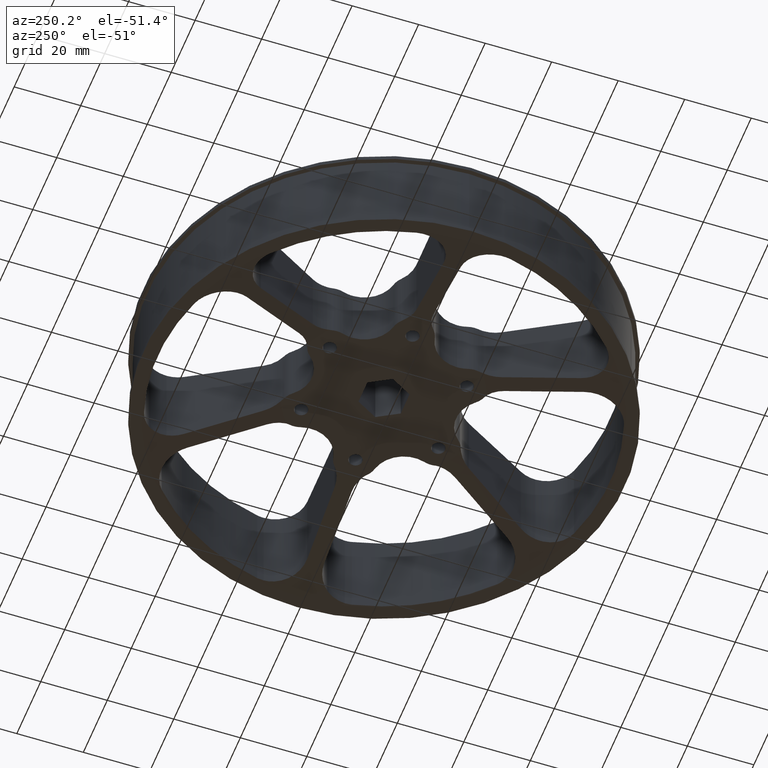
[diagram: clean part render]
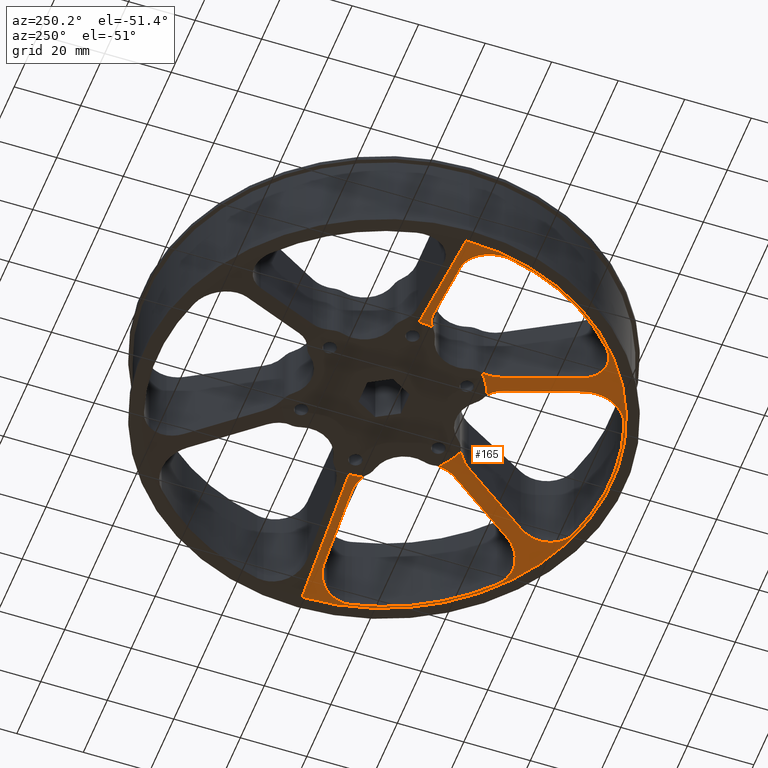
[diagram: same view with one face highlighted and labeled with its STEP entity id]
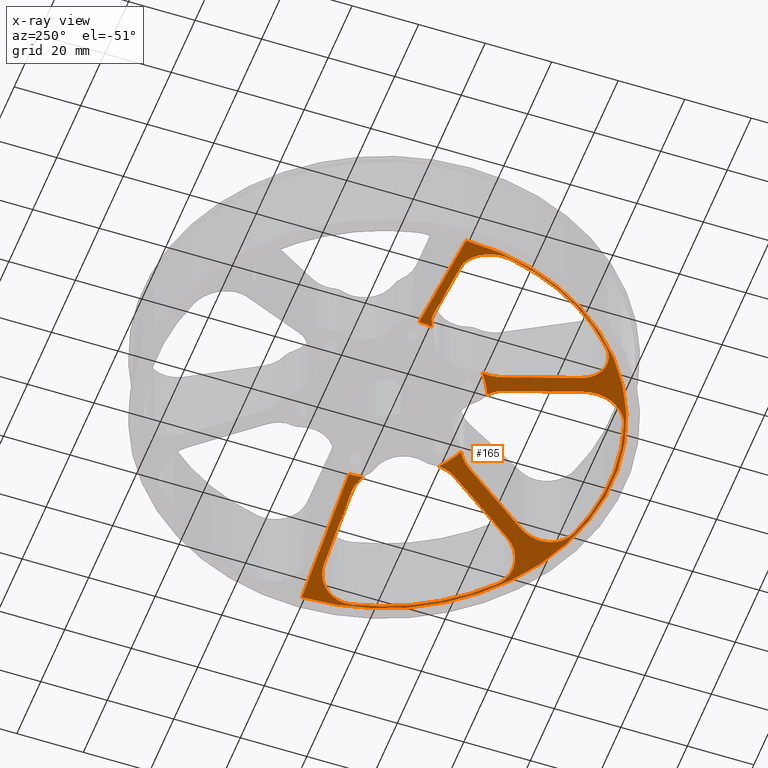
[diagram: x-ray of the same camera — body ghosted, the highlighted face saturated]
A machine part, auxiliary view. The second image highlights one B-rep face of the part: STEP entity #165.
The next image is the same camera in x-ray: the body ghosted, the highlighted face saturated — about 0% of this face is hidden behind the body in this view.
In plain terms, the highlighted conical surface has half-angle 76.483 deg.
Its self-contained STEP definition (entity closure, byte-faithful):
#26 = CARTESIAN_POINT ( 'NONE',  ( 1.155701270126330060, -0.1503132278564432711, 0.3689003627380584294 ) ) ;
#36 = CARTESIAN_POINT ( 'NONE',  ( -1.087427513776300980, -2.179539492029768155, 0.06352635243648625807 ) ) ;
#78 = VERTEX_POINT ( 'NONE', #2067 ) ;
#85 = VERTEX_POINT ( 'NONE', #1093 ) ;
#89 = ORIENTED_EDGE ( 'NONE', *, *, #990, .T. ) ;
#109 = EDGE_CURVE ( 'NONE', #4245, #4113, #3726, .T. ) ;
#118 = EDGE_CURVE ( 'NONE', #4113, #2414, #2725, .T. ) ;
#120 = CARTESIAN_POINT ( 'NONE',  ( 2.544980817644129090, -0.2463888546859934192, 0.03442088030356682538 ) ) ;
#123 = CARTESIAN_POINT ( 'NONE',  ( -0.5325596656303284160, -1.142900801905406993, 0.3459443311389593934 ) ) ;
#143 = CARTESIAN_POINT ( 'NONE',  ( 7.359656244876505384E-19, 0.0000000000000000000, 0.006009615384615852457 ) ) ;
#159 = CARTESIAN_POINT ( 'NONE',  ( 1.345544115262073515, -0.1000000000000096922, 0.3246983252277149679 ) ) ;
#165 = ADVANCED_FACE ( 'NONE', ( #3126 ), #3615, .F. ) ;
#197 = DIRECTION ( 'NONE',  ( -1.000000000000000000, 0.0000000000000000000, 1.224704050897968476E-16 ) ) ;
#202 = CARTESIAN_POINT ( 'NONE',  ( 1.368279890436745472, -2.044821805714155616, 0.05761208094328033880 ) ) ;
#203 = CARTESIAN_POINT ( 'NONE',  ( 0.7088819378625941248, -0.9074633893932486650, 0.3722302374804256075 ) ) ;
#219 = CARTESIAN_POINT ( 'NONE',  ( -1.327409411418778440, -0.09999999999998848699, 0.3290456396563286035 ) ) ;
#229 = VERTEX_POINT ( 'NONE', #746 ) ;
#241 = CARTESIAN_POINT ( 'NONE',  ( -1.078259601707718618, -2.263191920964511716, 0.04641567734534914752 ) ) ;
#249 = CARTESIAN_POINT ( 'NONE',  ( 0.7503072489403277423, -1.099570276451906636, 0.3290456382887024800 ) ) ;
#261 = CARTESIAN_POINT ( 'NONE',  ( 0.7593745980094686043, -1.115275385729621149, 0.3246983252277151344 ) ) ;
#265 = AXIS2_PLACEMENT_3D ( 'NONE', #2684, #2706, #1750 ) ;
#294 = CARTESIAN_POINT ( 'NONE',  ( -2.393441598232610712, -0.1302376864193036110, 0.07284213423055649339 ) ) ;
#304 = VERTEX_POINT ( 'NONE', #1744 ) ;
#306 = CARTESIAN_POINT ( 'NONE',  ( -2.616647412557147501, -0.4030687427845288107, 0.01262575695546981104 ) ) ;
#307 = CARTESIAN_POINT ( 'NONE',  ( -0.7427177851048467616, -1.086424939486604346, 0.3326843837485241040 ) ) ;
#313 = CARTESIAN_POINT ( 'NONE',  ( 1.770420596496624421, -2.004402361685679868, 0.006180855580384101745 ) ) ;
#321 = CARTESIAN_POINT ( 'NONE',  ( 1.080973602012593071, -2.117304496824770510, 0.07757733744274782073 ) ) ;
#328 = CARTESIAN_POINT ( 'NONE',  ( 1.792440584468726339, -1.985643913482326939, 0.006009615384615633014 ) ) ;
#338 = EDGE_CURVE ( 'NONE', #229, #85, #1046, .T. ) ;
#367 = CARTESIAN_POINT ( 'NONE',  ( -1.081989840471868858, -2.123981262425100880, 0.07603577902341968064 ) ) ;
#400 = EDGE_CURVE ( 'NONE', #2081, #2384, #3452, .T. ) ;
#414 = VERTEX_POINT ( 'NONE', #1173 ) ;
#425 = CARTESIAN_POINT ( 'NONE',  ( 1.051226338830098417, -2.022974489267507447, 0.1010089564023648329 ) ) ;
#436 = CIRCLE ( 'NONE', #1271, 1.151522212081429908 ) ;
#437 = CARTESIAN_POINT ( 'NONE',  ( 2.624242633941344494, -0.4800000000000162470, 0.007745225043631423674 ) ) ;
#440 = CARTESIAN_POINT ( 'NONE',  ( -1.448101248479610526, -2.073100424637317918, 0.04116182191688684544 ) ) ;
#451 = EDGE_CURVE ( 'NONE', #2081, #2304, #2750, .T. ) ;
#452 = CARTESIAN_POINT ( 'NONE',  ( 2.493447191203042923, -0.1920359558782119280, 0.04788948208505985904 ) ) ;
#475 = CARTESIAN_POINT ( 'NONE',  ( 1.944687247254166529, -0.1000000000000140776, 0.1809588940875915264 ) ) ;
#476 = CARTESIAN_POINT ( 'NONE',  ( -0.7088819378626094458, -0.9074633893932367856, 0.3722302374804257186 ) ) ;
#500 = ORIENTED_EDGE ( 'NONE', *, *, #3954, .T. ) ;
#510 = CARTESIAN_POINT ( 'NONE',  ( -1.171029754925200672, -0.1404775590272032415, 0.3655803360377242739 ) ) ;
#514 = CARTESIAN_POINT ( 'NONE',  ( -1.139999999999999902, 0.0000000000000000000, 0.3750000000000002776 ) ) ;
#522 = CARTESIAN_POINT ( 'NONE',  ( 1.420851896341116305, -2.065396167435627817, 0.04641567734534893241 ) ) ;
#533 = CARTESIAN_POINT ( 'NONE',  ( -1.086727684742459621, -2.207376047462685786, 0.05761208094328052615 ) ) ;
#603 = ORIENTED_EDGE ( 'NONE', *, *, #109, .T. ) ;
#605 = CARTESIAN_POINT ( 'NONE',  ( 4.558505688762634845E-17, 0.0000000000000000000, 0.3722302374804262737 ) ) ;
#606 = CARTESIAN_POINT ( 'NONE',  ( 1.792440584468726339, -1.985643913482326939, 0.006009615384615633014 ) ) ;
#611 = CARTESIAN_POINT ( 'NONE',  ( -2.272313863783645083, -0.09999999999998306077, 0.1022805633555093907 ) ) ;
#624 = CARTESIAN_POINT ( 'NONE',  ( 2.615838364179998266, -0.5594771241830254205, 0.006009615384615532400 ) ) ;
#628 = CARTESIAN_POINT ( 'NONE',  ( -2.455007575179199542, -0.1625542417485378588, 0.05761208094328065105 ) ) ;
#644 = CARTESIAN_POINT ( 'NONE',  ( -2.622954048119797488, -0.4456241243295342436, 0.009494228455443063860 ) ) ;
#647 = CARTESIAN_POINT ( 'NONE',  ( 0.5680347330550238327, -1.183865018115151324, 0.3333929926105487218 ) ) ;
#657 = CARTESIAN_POINT ( 'NONE',  ( 1.071201648468280476, -2.290526625636861713, 0.04119613056991571626 ) ) ;
#667 = CARTESIAN_POINT ( 'NONE',  ( 1.086429123154122989, -2.203223318394033736, 0.05853109271543806974 ) ) ;
#672 = CARTESIAN_POINT ( 'NONE',  ( -1.616597043591029292, -2.075584673143929582, 0.01662676016590336481 ) ) ;
#690 = CARTESIAN_POINT ( 'NONE',  ( 1.002855018974080137, -2.422178328650328005, 0.01886511939905931301 ) ) ;
#708 = CARTESIAN_POINT ( 'NONE',  ( -0.9137735017973108720, -2.502335133938920819, 0.008673133990504821797 ) ) ;
#718 = CARTESIAN_POINT ( 'NONE',  ( 1.140327317150177322, -0.1601780717763461037, 0.3722302374804254965 ) ) ;
#732 = EDGE_LOOP ( 'NONE', ( #2688, #2520, #1845, #1951, #995, #89, #2469, #1680, #500, #2014, #3007, #1647, #4033, #4144, #1701, #1291, #964, #1098, #4105, #735, #2897, #3777, #1903, #2293, #4167, #603, #2380, #1288, #2848, #2722, #2476 ) ) ;
#733 = CARTESIAN_POINT ( 'NONE',  ( 2.549591630525159028E-32, 0.0000000000000000000, 2.081899558550500773E-16 ) ) ;
#734 = DIRECTION ( 'NONE',  ( 1.224646799147353454E-16, 0.0000000000000000000, 1.000000000000000000 ) ) ;
#735 = ORIENTED_EDGE ( 'NONE', *, *, #2741, .T. ) ;
#738 = B_SPLINE_CURVE_WITH_KNOTS ( 'NONE', 3,
 ( #2858, #510, #3877, #1865, #4205, #2204, #219, #2538 ),
 .UNSPECIFIED., .F., .F.,
 ( 4, 2, 2, 4 ),
 ( 0.0003973831653408863951, 0.003199192370927435910, 0.004600096973720715736, 0.006001001576513995128 ),
 .UNSPECIFIED. ) ;
#746 = CARTESIAN_POINT ( 'NONE',  ( 2.624242633941344494, -0.4800000000000162470, 0.007745225043631423674 ) ) ;
#747 = VERTEX_POINT ( 'NONE', #1379 ) ;
#753 = DIRECTION ( 'NONE',  ( 0.9723023748042558534, 1.190726991107402124E-16, -0.2337265324048691528 ) ) ;
#762 = CARTESIAN_POINT ( 'NONE',  ( 1.035518776592210699, -1.993571133249317562, 0.1090217662803018989 ) ) ;
#768 = CARTESIAN_POINT ( 'NONE',  ( 2.623620770787648659, -0.4548412670131410929, 0.008959771050187408103 ) ) ;
#790 = CARTESIAN_POINT ( 'NONE',  ( 2.443416960375818014, -0.1561463612257563693, 0.06048231693274202375 ) ) ;
#807 = CARTESIAN_POINT ( 'NONE',  ( 0.4476755617751335126, -1.076023273333021946, 0.3689003626230651922 ) ) ;
#822 = CARTESIAN_POINT ( 'NONE',  ( 2.615838364179998266, -0.5594771241830254205, 0.006009615384615532400 ) ) ;
#838 = CARTESIAN_POINT ( 'NONE',  ( 1.139999999999999902, 1.396097351027982523E-16, 0.3750000000000000555 ) ) ;
#849 = DIRECTION ( 'NONE',  ( -1.000000000000000000, 0.0000000000000000000, 1.224704050897968476E-16 ) ) ;
#872 = AXIS2_PLACEMENT_3D ( 'NONE', #4180, #2172, #197 ) ;
#873 = CARTESIAN_POINT ( 'NONE',  ( 1.461567144382815098, -2.076107381903147253, 0.03871231928918920928 ) ) ;
#883 = CARTESIAN_POINT ( 'NONE',  ( -1.345544115262074847, -0.09999999999998840372, 0.3246983252277153009 ) ) ;
#899 = CARTESIAN_POINT ( 'NONE',  ( -1.671089567941404175, -2.059723331815689118, 0.01146111758689660580 ) ) ;
#942 = DIRECTION ( 'NONE',  ( -1.000000000000000000, 1.065814103640150279E-14, 1.186189881967765580E-16 ) ) ;
#958 = CARTESIAN_POINT ( 'NONE',  ( 1.697398836268464883, -2.048732776466211991, 0.009494228455442567730 ) ) ;
#962 = CARTESIAN_POINT ( 'NONE',  ( -1.035518776592254886, -1.993571133249296246, 0.1090217662803018989 ) ) ;
#964 = ORIENTED_EDGE ( 'NONE', *, *, #3487, .T. ) ;
#967 = CARTESIAN_POINT ( 'NONE',  ( -2.499111498048828039, -0.1977957535288926705, 0.04641567734534939038 ) ) ;
#980 = CARTESIAN_POINT ( 'NONE',  ( -2.624419041817796838, -0.4882509626545472048, 0.007352468114572310864 ) ) ;
#982 = B_SPLINE_CURVE_WITH_KNOTS ( 'NONE', 3,
 ( #3692, #1424, #2077, #3087 ),
 .UNSPECIFIED., .F., .F.,
 ( 4, 4 ),
 ( 0.01120379814011732665, 0.03467888712090326508 ),
 .UNSPECIFIED. ) ;
#990 = EDGE_CURVE ( 'NONE', #2384, #2163, #738, .T. ) ;
#995 = ORIENTED_EDGE ( 'NONE', *, *, #400, .T. ) ;
#1001 = CARTESIAN_POINT ( 'NONE',  ( 1.086429123154167176, -2.183571133249309071, 0.06276058290869274137 ) ) ;
#1005 = CARTESIAN_POINT ( 'NONE',  ( -0.5861695172526094622, -1.215275385729605251, 0.3246983252277151899 ) ) ;
#1013 = CARTESIAN_POINT ( 'NONE',  ( 1.345544115262073515, -0.1000000000000096922, 0.3246983252277149679 ) ) ;
#1025 = DIRECTION ( 'NONE',  ( -1.000000000000000000, -1.776356839400250465E-15, 1.224704050897968476E-16 ) ) ;
#1026 = CARTESIAN_POINT ( 'NONE',  ( 2.624242633941344494, -0.5065984331441538702, 0.006594811540705704939 ) ) ;
#1033 = CARTESIAN_POINT ( 'NONE',  ( -0.8767518046030798873, -2.523564763349656292, 0.006852893376929147275 ) ) ;
#1036 = CARTESIAN_POINT ( 'NONE',  ( -0.7172348243003056067, -1.008113783495358629, 0.3516323745419662750 ) ) ;
#1037 = VECTOR ( 'NONE', #1181, 39.37007874015748854 ) ;
#1038 = EDGE_CURVE ( 'NONE', #2440, #2756, #1575, .T. ) ;
#1046 = B_SPLINE_CURVE_WITH_KNOTS ( 'NONE', 3,
 ( #437, #2761, #768, #3086, #1100, #3432, #1422, #3780, #1760, #4107, #2092, #120, #2430, #452, #2777, #790, #3098, #1117, #3447, #1435, #3793, #1778, #4121, #2104 ),
 .UNSPECIFIED., .F., .F.,
 ( 4, 2, 2, 2, 2, 2, 2, 2, 2, 2, 2, 4 ),
 ( 0.002026578632197727995, 0.002984125107026652096, 0.003941671581855575764, 0.005856764531513423966, 0.006814311006342336358, 0.007771857481171248749, 0.009686950430829071798, 0.01160204338048689485, 0.01255958985531581591, 0.01351713633014473524, 0.01543222927980259472, 0.01734732222946045246 ),
 .UNSPECIFIED. ) ;
#1049 = CARTESIAN_POINT ( 'NONE',  ( 0.7593745980094686043, -1.115275385729621149, 0.3246983252277151344 ) ) ;
#1054 = LINE ( 'NONE', #838, #1932 ) ;
#1064 = DIRECTION ( 'NONE',  ( -1.000000000000000000, 0.0000000000000000000, 1.224646799147353454E-16 ) ) ;
#1089 = CARTESIAN_POINT ( 'NONE',  ( -0.4314453792875886373, -1.067641461169571926, 0.3722302374804256631 ) ) ;
#1090 = CARTESIAN_POINT ( 'NONE',  ( -1.208723857349127018, -1.893571133249301486, 0.1090217662803022736 ) ) ;
#1093 = CARTESIAN_POINT ( 'NONE',  ( 2.244242633941346821, -0.1000000000000162842, 0.1090217662803017601 ) ) ;
#1096 = CARTESIAN_POINT ( 'NONE',  ( -0.7593745980094864789, -1.115275385729609159, 0.3246983252277152454 ) ) ;
#1098 = ORIENTED_EDGE ( 'NONE', *, *, #2990, .T. ) ;
#1100 = CARTESIAN_POINT ( 'NONE',  ( 2.619200423749525886, -0.4170335226248079175, 0.01149837214395146162 ) ) ;
#1107 = AXIS2_PLACEMENT_3D ( 'NONE', #3257, #1260, #3597 ) ;
#1117 = CARTESIAN_POINT ( 'NONE',  ( 2.410903532782334935, -0.1382725979530675664, 0.06854326818634690066 ) ) ;
#1125 = CARTESIAN_POINT ( 'NONE',  ( 4.558505688762623135E-17, 0.0000000000000000000, 0.3722302374804257186 ) ) ;
#1149 = B_SPLINE_CURVE_WITH_KNOTS ( 'NONE', 3,
 ( #1089, #2310, #1787, #123, #3643, #4137, #2281, #4288 ),
 .UNSPECIFIED., .F., .F.,
 ( 4, 2, 2, 4 ),
 ( 0.0003973831653409074286, 0.003199192643236138840, 0.004600097382183757772, 0.006001002121131377570 ),
 .UNSPECIFIED. ) ;
#1173 = CARTESIAN_POINT ( 'NONE',  ( -0.7084642514475723019, -0.9252753857296075468, 0.3689046500688198393 ) ) ;
#1176 = VERTEX_POINT ( 'NONE', #1005 ) ;
#1177 = B_SPLINE_CURVE_WITH_KNOTS ( 'NONE', 3,
 ( #822, #2354, #1026, #3694 ),
 .UNSPECIFIED., .F., .F.,
 ( 4, 4 ),
 ( 0.0000000000000000000, 0.002026578632197727995 ),
 .UNSPECIFIED. ) ;
#1178 = CARTESIAN_POINT ( 'NONE',  ( 1.239199103310891781, -1.940210342415246147, 0.09563110297430577056 ) ) ;
#1181 = DIRECTION ( 'NONE',  ( -0.9723023748042558534, 0.0000000000000000000, -0.2337265324048689308 ) ) ;
#1188 = CARTESIAN_POINT ( 'NONE',  ( 1.503236050090756670, -2.082260233324131793, 0.03169419744200854122 ) ) ;
#1204 = B_SPLINE_CURVE_WITH_KNOTS ( 'NONE', 3,
 ( #3678, #1328, #2024, #1779 ),
 .UNSPECIFIED., .F., .F.,
 ( 4, 4 ),
 ( 0.01120379814011732318, 0.03467888712090325815 ),
 .UNSPECIFIED. ) ;
#1210 = CARTESIAN_POINT ( 'NONE',  ( 0.7088819378625941248, -0.9074633893932486650, 0.3722302374804256075 ) ) ;
#1216 = CARTESIAN_POINT ( 'NONE',  ( -0.9901504688013065270, -2.437966785560228278, 0.01653074657228797983 ) ) ;
#1223 = CARTESIAN_POINT ( 'NONE',  ( -1.710520045632440977, -2.042356043043110692, 0.008653585715785519494 ) ) ;
#1229 = CARTESIAN_POINT ( 'NONE',  ( 0.7071720120755788930, -0.9439027403810058559, 0.3655803353913515963 ) ) ;
#1232 = CARTESIAN_POINT ( 'NONE',  ( -0.9255552118513388216, -2.494356900795737797, 0.009494228455442767223 ) ) ;
#1260 = DIRECTION ( 'NONE',  ( 1.224646799147353454E-16, 0.0000000000000000000, 1.000000000000000000 ) ) ;
#1270 = CARTESIAN_POINT ( 'NONE',  ( 0.4314453792875629912, -1.067641461169582140, 0.3722302374804256075 ) ) ;
#1271 = AXIS2_PLACEMENT_3D ( 'NONE', #605, #2935, #942 ) ;
#1280 = CARTESIAN_POINT ( 'NONE',  ( -1.344578831383624218, -2.031069387294141659, 0.06351105622040975618 ) ) ;
#1281 = CARTESIAN_POINT ( 'NONE',  ( -2.528745305903933982, -0.2277005854206285429, 0.03871231928918964643 ) ) ;
#1288 = ORIENTED_EDGE ( 'NONE', *, *, #3488, .T. ) ;
#1291 = ORIENTED_EDGE ( 'NONE', *, *, #4164, .T. ) ;
#1297 = CARTESIAN_POINT ( 'NONE',  ( -2.621073662873634635, -0.5310280311064423664, 0.006180855580384496395 ) ) ;
#1298 = DIRECTION ( 'NONE',  ( -1.000000000000000000, 8.881784197001252323E-16, 1.186189881967765580E-16 ) ) ;
#1300 = B_SPLINE_CURVE_WITH_KNOTS ( 'NONE', 3,
 ( #2644, #3992, #1311, #321, #4318, #3073, #3655, #425, #2749, #762 ),
 .UNSPECIFIED., .F., .F.,
 ( 4, 2, 2, 2, 4 ),
 ( 0.01219422600215053568, 0.01348250005897801661, 0.01477077411580549754, 0.01605904817263297674, 0.01734732222946045940 ),
 .UNSPECIFIED. ) ;
#1311 = CARTESIAN_POINT ( 'NONE',  ( 1.085321576909514807, -2.150174393384407079, 0.07005862468894225037 ) ) ;
#1318 = CARTESIAN_POINT ( 'NONE',  ( 1.781717568682111175, -1.995323578881204707, 0.006009615384615614800 ) ) ;
#1328 = CARTESIAN_POINT ( 'NONE',  ( -1.058946164977367266, -1.634148560220994861, 0.1809588936208283705 ) ) ;
#1329 = CARTESIAN_POINT ( 'NONE',  ( 1.309274531260010477, -0.1000000000000096506, 0.3333929963519006168 ) ) ;
#1356 = CARTESIAN_POINT ( 'NONE',  ( -0.8371421237401572846, -2.540674466288353806, 0.006009615384615894958 ) ) ;
#1379 = CARTESIAN_POINT ( 'NONE',  ( -0.4314453792875886373, -1.067641461169571926, 0.3722302374804256631 ) ) ;
#1393 = CARTESIAN_POINT ( 'NONE',  ( -1.140327317150180209, -0.1601780717763267581, 0.3722302374804257741 ) ) ;
#1422 = CARTESIAN_POINT ( 'NONE',  ( 2.604371306561161781, -0.3561527404227515792, 0.01718246934554511218 ) ) ;
#1424 = CARTESIAN_POINT ( 'NONE',  ( 0.8857410842204547219, -1.734148560221009161, 0.1809588936208279819 ) ) ;
#1426 = CARTESIAN_POINT ( 'NONE',  ( 1.208723857349099262, -1.893571133249320360, 0.1090217662803017046 ) ) ;
#1435 = CARTESIAN_POINT ( 'NONE',  ( 2.365412310584178446, -0.1189948068126838038, 0.07971402238829983222 ) ) ;
#1439 = CARTESIAN_POINT ( 'NONE',  ( -1.630392436859937400, -2.072394202112499695, 0.01518726926310766216 ) ) ;
#1442 = CIRCLE ( 'NONE', #3743, 2.674999999999999822 ) ;
#1466 = CARTESIAN_POINT ( 'NONE',  ( -1.049554391513402463, -2.017881531408196150, 0.1022805633555091548 ) ) ;
#1471 = CARTESIAN_POINT ( 'NONE',  ( 1.035518776592210699, -1.993571133249317562, 0.1090217662803018989 ) ) ;
#1479 = CARTESIAN_POINT ( 'NONE',  ( -2.244242633941349041, -0.09999999999998318567, 0.1090217662803020515 ) ) ;
#1487 = CARTESIAN_POINT ( 'NONE',  ( -1.420869961447045027, -2.065405893146414318, 0.04641134710570003763 ) ) ;
#1490 = DIRECTION ( 'NONE',  ( 1.224646799147353454E-16, 0.0000000000000000000, 1.000000000000000000 ) ) ;
#1491 = CARTESIAN_POINT ( 'NONE',  ( -1.944687223175657564, -0.09999999999998493427, 0.1809588998699580287 ) ) ;
#1510 = CARTESIAN_POINT ( 'NONE',  ( 1.041194022041222578, -2.363655673215649511, 0.02817128197472346107 ) ) ;
#1516 = CARTESIAN_POINT ( 'NONE',  ( 1.545913189000520216, -2.083749486676334861, 0.02534717587149130924 ) ) ;
#1526 = VERTEX_POINT ( 'NONE', #2854 ) ;
#1534 = CARTESIAN_POINT ( 'NONE',  ( 0.4314453792875629912, -1.067641461169582140, 0.3722302374804256075 ) ) ;
#1542 = CARTESIAN_POINT ( 'NONE',  ( -1.008225335937297684, -2.416216328248664169, 0.01970530602920987293 ) ) ;
#1561 = CARTESIAN_POINT ( 'NONE',  ( -0.9592559355557284118, -2.467617503413571001, 0.01262575695546950226 ) ) ;
#1563 = CIRCLE ( 'NONE', #872, 2.674999999999999822 ) ;
#1566 = CARTESIAN_POINT ( 'NONE',  ( -1.588663312432264441, -2.080420196640258457, 0.01980712311060669334 ) ) ;
#1569 = CARTESIAN_POINT ( 'NONE',  ( 0.7593745980094686043, -1.115275385729621149, 0.3246983252277151344 ) ) ;
#1575 = B_SPLINE_CURVE_WITH_KNOTS ( 'NONE', 3,
 ( #1598, #611, #3953, #1935, #4279, #2280, #294, #2617, #628, #2956, #967, #3282, #1281, #3626, #1614, #3961, #1950, #4294, #2296, #306, #2634, #644, #2968, #980, #3300, #1297, #3641, #1628 ),
 .UNSPECIFIED., .F., .F.,
 ( 4, 2, 2, 2, 2, 2, 2, 2, 2, 2, 2, 2, 2, 4 ),
 ( 0.0000000000000000000, 0.002168853664803587714, 0.003253280497205391329, 0.004337707329607195378, 0.006506560994410786128, 0.007590987826812581503, 0.008675414659214378613, 0.009759841491616173120, 0.01084426832401796936, 0.01301312198882156011, 0.01409754882122335462, 0.01518197565362514739, 0.01626640248602694364, 0.01735082931842873641 ),
 .UNSPECIFIED. ) ;
#1598 = CARTESIAN_POINT ( 'NONE',  ( -2.244242633941349041, -0.09999999999998318567, 0.1090217662803020515 ) ) ;
#1609 = CARTESIAN_POINT ( 'NONE',  ( 0.9465993998050531433, -2.478742803002122574, 0.01123335039722226161 ) ) ;
#1614 = CARTESIAN_POINT ( 'NONE',  ( -2.554908284394188378, -0.2607104906011126211, 0.03169419744200908245 ) ) ;
#1625 = CARTESIAN_POINT ( 'NONE',  ( 0.7424383178592043331, -1.083358003117996349, 0.3333315966553895282 ) ) ;
#1628 = CARTESIAN_POINT ( 'NONE',  ( -2.615838364180006259, -0.5594771241829868957, 0.006009615384616172513 ) ) ;
#1634 = CARTESIAN_POINT ( 'NONE',  ( 0.5459023428339055961, -1.155705115592978727, 0.3418077866013434218 ) ) ;
#1647 = ORIENTED_EDGE ( 'NONE', *, *, #4215, .T. ) ;
#1649 = CARTESIAN_POINT ( 'NONE',  ( 7.359656244876505384E-19, 0.0000000000000000000, 0.006009615384615852457 ) ) ;
#1660 = EDGE_CURVE ( 'NONE', #3097, #1526, #436, .T. ) ;
#1668 = CARTESIAN_POINT ( 'NONE',  ( 1.221825952857054531, -0.1202504314963569604, 0.3539155783736997463 ) ) ;
#1677 = CARTESIAN_POINT ( 'NONE',  ( -1.060671893561466295, -2.043283075021750772, 0.09563110297430593709 ) ) ;
#1680 = ORIENTED_EDGE ( 'NONE', *, *, #1038, .T. ) ;
#1688 = CARTESIAN_POINT ( 'NONE',  ( 1.710199043874790714, -2.042518632830992775, 0.008673133990504618834 ) ) ;
#1689 = CARTESIAN_POINT ( 'NONE',  ( -0.8233977797112879138, -2.545121037665305064, 0.006009615384615953071 ) ) ;
#1691 = CARTESIAN_POINT ( 'NONE',  ( 1.208723857349099262, -1.893571133249320360, 0.1090217662803017046 ) ) ;
#1697 = CARTESIAN_POINT ( 'NONE',  ( -1.035518776592254886, -1.993571133249296246, 0.1090217662803018989 ) ) ;
#1701 = ORIENTED_EDGE ( 'NONE', *, *, #4145, .T. ) ;
#1706 = CARTESIAN_POINT ( 'NONE',  ( 1.073890803904357760, -2.280886748339614023, 0.04301900775269992122 ) ) ;
#1730 = VERTEX_POINT ( 'NONE', #2641 ) ;
#1744 = CARTESIAN_POINT ( 'NONE',  ( -1.208723857349127018, -1.893571133249301486, 0.1090217662803022736 ) ) ;
#1747 = CARTESIAN_POINT ( 'NONE',  ( -1.461949482608109641, -2.076187011877027810, 0.03864379365982685555 ) ) ;
#1750 = DIRECTION ( 'NONE',  ( -1.000000000000000000, 0.0000000000000000000, 1.198178944589589118E-16 ) ) ;
#1760 = CARTESIAN_POINT ( 'NONE',  ( 2.584310803097348508, -0.3099677234682259863, 0.02336219458336322510 ) ) ;
#1778 = CARTESIAN_POINT ( 'NONE',  ( 2.293814231975073614, -0.1024486495129388330, 0.09709181715662584811 ) ) ;
#1779 = CARTESIAN_POINT ( 'NONE',  ( -0.7593745980094864789, -1.115275385729609159, 0.3246983252277152454 ) ) ;
#1784 = B_SPLINE_CURVE_WITH_KNOTS ( 'NONE', 3,
 ( #1049, #3034, #4043, #1691 ),
 .UNSPECIFIED., .F., .F.,
 ( 4, 4 ),
 ( 2.374831638876753537E-07, 0.02347532646394985198 ),
 .UNSPECIFIED. ) ;
#1787 = CARTESIAN_POINT ( 'NONE',  ( -0.4931610981416661432, -1.105302345974094269, 0.3581113411067550212 ) ) ;
#1788 = VERTEX_POINT ( 'NONE', #2669 ) ;
#1795 = CARTESIAN_POINT ( 'NONE',  ( -0.7095599325864463403, -0.9585855485907077700, 0.3623554546846615709 ) ) ;
#1802 = EDGE_CURVE ( 'NONE', #1730, #3097, #2003, .T. ) ;
#1822 = AXIS2_PLACEMENT_3D ( 'NONE', #3503, #1490, #3848 ) ;
#1835 = CARTESIAN_POINT ( 'NONE',  ( -1.332597009147855838, -2.023701662793262912, 0.06657530022539949466 ) ) ;
#1845 = ORIENTED_EDGE ( 'NONE', *, *, #1887, .T. ) ;
#1848 = CARTESIAN_POINT ( 'NONE',  ( 1.298426810186348979, -1.999021319697857235, 0.07603577902341952799 ) ) ;
#1854 = CARTESIAN_POINT ( 'NONE',  ( 1.054576309254389832, -2.337146694643605471, 0.03268973049403473691 ) ) ;
#1858 = CARTESIAN_POINT ( 'NONE',  ( 1.616265935477197990, -2.076478852331112623, 0.01653074657228777514 ) ) ;
#1859 = CARTESIAN_POINT ( 'NONE',  ( -1.771010582761333385, -2.004988774121615247, 0.006009615384616071899 ) ) ;
#1865 = CARTESIAN_POINT ( 'NONE',  ( -1.256060949214086619, -0.1102402044935203301, 0.3459443339627560343 ) ) ;
#1887 = EDGE_CURVE ( 'NONE', #78, #2304, #2356, .T. ) ;
#1888 = CARTESIAN_POINT ( 'NONE',  ( -1.038833659926103214, -2.368255348159828522, 0.02739028061926860116 ) ) ;
#1903 = ORIENTED_EDGE ( 'NONE', *, *, #2175, .T. ) ;
#1922 = CIRCLE ( 'NONE', #3026, 1.151522212081429908 ) ;
#1932 = VECTOR ( 'NONE', #753, 39.37007874015748143 ) ;
#1935 = CARTESIAN_POINT ( 'NONE',  ( -2.340462059120184346, -0.1121223136217139177, 0.08578245652131959165 ) ) ;
#1944 = CARTESIAN_POINT ( 'NONE',  ( 0.9618655915160552183, -2.465615630438392269, 0.01285378196182282440 ) ) ;
#1949 = B_SPLINE_CURVE_WITH_KNOTS ( 'NONE', 3,
 ( #883, #3311, #1491, #1479 ),
 .UNSPECIFIED., .F., .F.,
 ( 4, 4 ),
 ( 0.03513703345844007564, 0.05857701023617150476 ),
 .UNSPECIFIED. ) ;
#1950 = CARTESIAN_POINT ( 'NONE',  ( -2.577536585084748033, -0.2969253503817033124, 0.02534717587149180884 ) ) ;
#1951 = ORIENTED_EDGE ( 'NONE', *, *, #451, .F. ) ;
#1962 = CARTESIAN_POINT ( 'NONE',  ( 0.4926653701946073216, -1.106564567344610506, 0.3578734881116412692 ) ) ;
#1986 = CARTESIAN_POINT ( 'NONE',  ( -0.7084642514475723019, -0.9193489658766171857, 0.3700357767147222643 ) ) ;
#2000 = CARTESIAN_POINT ( 'NONE',  ( 1.171643186549693905, -0.1416405004231731934, 0.3653517118020802590 ) ) ;
#2003 = B_SPLINE_CURVE_WITH_KNOTS ( 'NONE', 3,
 ( #1013, #1329, #3679, #1668, #4014, #2000, #26, #2340 ),
 .UNSPECIFIED., .F., .F.,
 ( 4, 2, 2, 4 ),
 ( 2.027963866919312708E-07, 0.002802592206002641612, 0.004203786910810617186, 0.005604981615618592761 ),
 .UNSPECIFIED. ) ;
#2009 = CARTESIAN_POINT ( 'NONE',  ( -1.076573665384279010, -2.096451543292206399, 0.08252046003462172596 ) ) ;
#2014 = ORIENTED_EDGE ( 'NONE', *, *, #3244, .T. ) ;
#2024 = CARTESIAN_POINT ( 'NONE',  ( -0.9091666662923785225, -1.374722858566401751, 0.2528809715653635437 ) ) ;
#2067 = CARTESIAN_POINT ( 'NONE',  ( 2.700000000000000622, 3.306546357697854719E-16, -6.499484351137624458E-17 ) ) ;
#2077 = CARTESIAN_POINT ( 'NONE',  ( 0.7359615855354697533, -1.474722858566413608, 0.2528809715653633772 ) ) ;
#2081 = VERTEX_POINT ( 'NONE', #2171 ) ;
#2092 = CARTESIAN_POINT ( 'NONE',  ( 2.565879233978215268, -0.2772580381256478099, 0.02865435110550461351 ) ) ;
#2104 = CARTESIAN_POINT ( 'NONE',  ( 2.244242633941346821, -0.1000000000000162842, 0.1090217662803017601 ) ) ;
#2146 = CARTESIAN_POINT ( 'NONE',  ( 1.645128209236080830, -0.1000000000000118988, 0.2528809817756119127 ) ) ;
#2155 = CARTESIAN_POINT ( 'NONE',  ( -1.657638673986983058, -2.064463421810022847, 0.01260446237046868555 ) ) ;
#2163 = VERTEX_POINT ( 'NONE', #4244 ) ;
#2166 = CARTESIAN_POINT ( 'NONE',  ( -1.407599759183411292, -2.060837743391263022, 0.04911969333429195422 ) ) ;
#2171 = CARTESIAN_POINT ( 'NONE',  ( -1.151522212081430130, 0.0000000000000000000, 0.3722302374804263847 ) ) ;
#2172 = DIRECTION ( 'NONE',  ( 1.224646799147353454E-16, 0.0000000000000000000, 1.000000000000000000 ) ) ;
#2175 = EDGE_CURVE ( 'NONE', #3945, #3202, #4293, .T. ) ;
#2177 = CARTESIAN_POINT ( 'NONE',  ( 1.343822811761063996, -2.031509597719309390, 0.06352635243648609153 ) ) ;
#2197 = CARTESIAN_POINT ( 'NONE',  ( 1.671035995862327095, -2.059739359692323468, 0.01146611840192748345 ) ) ;
#2204 = CARTESIAN_POINT ( 'NONE',  ( -1.309434701709074389, -0.1012914432548027432, 0.3333315988734066870 ) ) ;
#2219 = CARTESIAN_POINT ( 'NONE',  ( -1.057331610047613335, -2.330077821297766416, 0.03395844962253736360 ) ) ;
#2269 = EDGE_CURVE ( 'NONE', #1788, #3945, #4040, .T. ) ;
#2280 = CARTESIAN_POINT ( 'NONE',  ( -2.380416650658212507, -0.1249599427272509999, 0.07603577902341990269 ) ) ;
#2281 = CARTESIAN_POINT ( 'NONE',  ( -0.5771021681831740580, -1.199570276451381146, 0.3290456382888434783 ) ) ;
#2293 = ORIENTED_EDGE ( 'NONE', *, *, #3763, .T. ) ;
#2296 = CARTESIAN_POINT ( 'NONE',  ( -2.606416404278498078, -0.3614879332291237590, 0.01653074657228829208 ) ) ;
#2304 = VERTEX_POINT ( 'NONE', #2864 ) ;
#2310 = CARTESIAN_POINT ( 'NONE',  ( -0.4638577458335867432, -1.084380297493141576, 0.3655803353914182097 ) ) ;
#2340 = CARTESIAN_POINT ( 'NONE',  ( 1.140327317150177322, -0.1601780717763461037, 0.3722302374804254965 ) ) ;
#2354 = CARTESIAN_POINT ( 'NONE',  ( 2.621481547662826816, -0.5330923888427822055, 0.006009615384615532400 ) ) ;
#2356 = CIRCLE ( 'NONE', #3740, 2.700000000000000178 ) ;
#2380 = ORIENTED_EDGE ( 'NONE', *, *, #118, .T. ) ;
#2384 = VERTEX_POINT ( 'NONE', #1393 ) ;
#2408 = VERTEX_POINT ( 'NONE', #962 ) ;
#2414 = VERTEX_POINT ( 'NONE', #624 ) ;
#2429 = CARTESIAN_POINT ( 'NONE',  ( -1.792440584468755871, -1.985643913482300071, 0.006009615384616071899 ) ) ;
#2430 = CARTESIAN_POINT ( 'NONE',  ( 2.529057797638345928, -0.2272026016842221274, 0.03865572047004537520 ) ) ;
#2440 = VERTEX_POINT ( 'NONE', #2537 ) ;
#2449 = CARTESIAN_POINT ( 'NONE',  ( -0.7086028097872103526, -0.9134117445717159223, 0.3711447082803800424 ) ) ;
#2451 = B_SPLINE_CURVE_WITH_KNOTS ( 'NONE', 3,
 ( #2754, #3958, #3649, #1697 ),
 .UNSPECIFIED., .F., .F.,
 ( 4, 4 ),
 ( 2.374831638847537253E-07, 0.02347532646394985198 ),
 .UNSPECIFIED. ) ;
#2469 = ORIENTED_EDGE ( 'NONE', *, *, #2744, .T. ) ;
#2476 = ORIENTED_EDGE ( 'NONE', *, *, #1802, .T. ) ;
#2493 = VERTEX_POINT ( 'NONE', #2692 ) ;
#2510 = EDGE_CURVE ( 'NONE', #1526, #78, #1054, .T. ) ;
#2518 = CARTESIAN_POINT ( 'NONE',  ( 1.407411597831936367, -2.060773818806583169, 0.04915793615369559721 ) ) ;
#2520 = ORIENTED_EDGE ( 'NONE', *, *, #2510, .T. ) ;
#2528 = CARTESIAN_POINT ( 'NONE',  ( -1.080976679624407799, -2.249241106706593385, 0.04915793615369574987 ) ) ;
#2537 = CARTESIAN_POINT ( 'NONE',  ( -2.244242633941349041, -0.09999999999998318567, 0.1090217662803020515 ) ) ;
#2538 = CARTESIAN_POINT ( 'NONE',  ( -1.345544115262074847, -0.09999999999998840372, 0.3246983252277153009 ) ) ;
#2544 = CARTESIAN_POINT ( 'NONE',  ( -0.7593745980094864789, -1.115275385729609159, 0.3246983252277152454 ) ) ;
#2562 = CARTESIAN_POINT ( 'NONE',  ( -1.067178161521125324, -2.303807967323767691, 0.03871231928918932030 ) ) ;
#2583 = CARTESIAN_POINT ( 'NONE',  ( -0.9482686127370875129, -2.477029302901163632, 0.01146611840192767601 ) ) ;
#2602 = CARTESIAN_POINT ( 'NONE',  ( 0.7290438222908842691, -1.049938996061118068, 0.3417726633377802803 ) ) ;
#2617 = CARTESIAN_POINT ( 'NONE',  ( -2.431250325537360091, -0.1480298943104663978, 0.06352635243648650787 ) ) ;
#2634 = CARTESIAN_POINT ( 'NONE',  ( -2.619304608599407835, -0.4172899432088483795, 0.01146611840192797091 ) ) ;
#2641 = CARTESIAN_POINT ( 'NONE',  ( 1.345544115262073515, -0.1000000000000096922, 0.3246983252277149679 ) ) ;
#2644 = CARTESIAN_POINT ( 'NONE',  ( 1.086429123154167176, -2.183571133249309071, 0.06276058290869274137 ) ) ;
#2663 = CARTESIAN_POINT ( 'NONE',  ( -1.239493944932457570, -1.940584110140774809, 0.09551724985830822856 ) ) ;
#2667 = DIRECTION ( 'NONE',  ( 1.224646799147353454E-16, 0.0000000000000000000, 1.000000000000000000 ) ) ;
#2669 = CARTESIAN_POINT ( 'NONE',  ( 0.5861695172525814845, -1.215275385729618796, 0.3246983252277150234 ) ) ;
#2672 = CARTESIAN_POINT ( 'NONE',  ( -0.7139340848191020328, -0.9916470972240160053, 0.3553161826091242315 ) ) ;
#2680 = VERTEX_POINT ( 'NONE', #1471 ) ;
#2684 = CARTESIAN_POINT ( 'NONE',  ( 4.592425496802577300E-17, 0.0000000000000000000, 0.3750000000000001665 ) ) ;
#2688 = ORIENTED_EDGE ( 'NONE', *, *, #1660, .T. ) ;
#2692 = CARTESIAN_POINT ( 'NONE',  ( -0.8233977797112879138, -2.545121037665305064, 0.006009615384615953071 ) ) ;
#2694 = CARTESIAN_POINT ( 'NONE',  ( -1.083931654147087364, -2.137900069753516430, 0.07284213423055622971 ) ) ;
#2696 = CARTESIAN_POINT ( 'NONE',  ( -0.7084642514475723019, -0.9252753857296075468, 0.3689046500688198393 ) ) ;
#2701 = CARTESIAN_POINT ( 'NONE',  ( -1.222749686435375072, -1.917864581844960892, 0.1022852634202533334 ) ) ;
#2706 = DIRECTION ( 'NONE',  ( -1.224646799147353454E-16, -0.0000000000000000000, -1.000000000000000000 ) ) ;
#2709 = CARTESIAN_POINT ( 'NONE',  ( 1.084913632414993501, -2.222762389524676863, 0.05447708938729609734 ) ) ;
#2711 = VERTEX_POINT ( 'NONE', #2544 ) ;
#2722 = ORIENTED_EDGE ( 'NONE', *, *, #2962, .T. ) ;
#2725 = CIRCLE ( 'NONE', #3698, 2.674999999999999822 ) ;
#2741 = EDGE_CURVE ( 'NONE', #3882, #2680, #1300, .T. ) ;
#2744 = EDGE_CURVE ( 'NONE', #2163, #2440, #1949, .T. ) ;
#2749 = CARTESIAN_POINT ( 'NONE',  ( 1.043851641571970523, -2.008004078766873146, 0.1050195523346328375 ) ) ;
#2750 = LINE ( 'NONE', #514, #1037 ) ;
#2754 = CARTESIAN_POINT ( 'NONE',  ( -0.5861695172526094622, -1.215275385729605251, 0.3246983252277151899 ) ) ;
#2756 = VERTEX_POINT ( 'NONE', #2835 ) ;
#2761 = CARTESIAN_POINT ( 'NONE',  ( 2.624242633941345382, -0.4674323969035987791, 0.008288788652178490091 ) ) ;
#2762 = CARTESIAN_POINT ( 'NONE',  ( 0.8233977797112321806, -2.545121037665323271, 0.006009615384615751843 ) ) ;
#2777 = CARTESIAN_POINT ( 'NONE',  ( 2.474236553270129590, -0.1765050845506751787, 0.05276578310712391751 ) ) ;
#2815 = EDGE_CURVE ( 'NONE', #2680, #1788, #982, .T. ) ;
#2822 = B_SPLINE_CURVE_WITH_KNOTS ( 'NONE', 3,
 ( #3899, #4049, #3560, #1609, #1944, #4287, #690, #2963, #3181, #3521, #1510, #1854, #3476, #657, #1706, #3723, #3377, #2709, #667, #1001 ),
 .UNSPECIFIED., .F., .F.,
 ( 4, 2, 2, 2, 2, 2, 2, 2, 2, 4 ),
 ( 0.0000000000000000000, 0.003048556500537673818, 0.004572834750806515497, 0.006097113001075355442, 0.006859252126209764572, 0.007621391251344174569, 0.009145669501612970279, 0.009907808626747357725, 0.01066994775188174517, 0.01219422600215053568 ),
 .UNSPECIFIED. ) ;
#2828 = VERTEX_POINT ( 'NONE', #2762 ) ;
#2835 = CARTESIAN_POINT ( 'NONE',  ( -2.615838364180006259, -0.5594771241829868957, 0.006009615384616172513 ) ) ;
#2848 = ORIENTED_EDGE ( 'NONE', *, *, #338, .T. ) ;
#2850 = B_SPLINE_CURVE_WITH_KNOTS ( 'NONE', 3,
 ( #1096, #307, #4100, #1036, #2672, #1795, #3048, #2696 ),
 .UNSPECIFIED., .F., .F.,
 ( 4, 2, 2, 4 ),
 ( 2.341707768839706720E-07, 0.002574231188403829605, 0.003861229697217296360, 0.005148228206030763116 ),
 .UNSPECIFIED. ) ;
#2852 = CARTESIAN_POINT ( 'NONE',  ( 1.447888800486304639, -2.073044976836461828, 0.04120193615354803690 ) ) ;
#2854 = CARTESIAN_POINT ( 'NONE',  ( 1.151522212081430130, 2.358377174435229028E-16, 0.3722302374804261071 ) ) ;
#2858 = CARTESIAN_POINT ( 'NONE',  ( -1.140327317150180209, -0.1601780717763267581, 0.3722302374804257741 ) ) ;
#2864 = CARTESIAN_POINT ( 'NONE',  ( -2.700000000000000622, 0.0000000000000000000, 5.496709550630829796E-16 ) ) ;
#2884 = EDGE_CURVE ( 'NONE', #2828, #3882, #2822, .T. ) ;
#2892 = CARTESIAN_POINT ( 'NONE',  ( -1.747825251884096653, -2.021543015230148566, 0.006678401742229793728 ) ) ;
#2897 = ORIENTED_EDGE ( 'NONE', *, *, #2815, .T. ) ;
#2935 = DIRECTION ( 'NONE',  ( 1.224646799147353454E-16, 0.0000000000000000000, 1.000000000000000000 ) ) ;
#2956 = CARTESIAN_POINT ( 'NONE',  ( -2.488388277456337505, -0.1884672879000194312, 0.04915793615369586783 ) ) ;
#2962 = EDGE_CURVE ( 'NONE', #85, #1730, #3122, .T. ) ;
#2963 = CARTESIAN_POINT ( 'NONE',  ( 1.020446667341446068, -2.397798601831222953, 0.02262197089358333399 ) ) ;
#2967 = CARTESIAN_POINT ( 'NONE',  ( -1.297979649083904397, -1.999660972226012134, 0.07597018140800192165 ) ) ;
#2968 = CARTESIAN_POINT ( 'NONE',  ( -2.623972545672094814, -0.4598165011079362596, 0.008673133990505161803 ) ) ;
#2990 = EDGE_CURVE ( 'NONE', #2493, #2828, #1563, .T. ) ;
#3007 = ORIENTED_EDGE ( 'NONE', *, *, #3409, .T. ) ;
#3017 = CARTESIAN_POINT ( 'NONE',  ( -0.8893717838278646370, -2.516939041717094927, 0.007352468114571963052 ) ) ;
#3026 = AXIS2_PLACEMENT_3D ( 'NONE', #1125, #734, #1298 ) ;
#3034 = CARTESIAN_POINT ( 'NONE',  ( 0.9091666662923574282, -1.374722858566416184, 0.2528809715653633217 ) ) ;
#3047 = DIRECTION ( 'NONE',  ( -1.224646799147353454E-16, -0.0000000000000000000, -1.000000000000000000 ) ) ;
#3048 = CARTESIAN_POINT ( 'NONE',  ( -0.7084642514475724129, -0.9419731502958709202, 0.3657176861181684058 ) ) ;
#3073 = CARTESIAN_POINT ( 'NONE',  ( 1.069226010235360569, -2.069337148574322160, 0.08912348636110821454 ) ) ;
#3086 = CARTESIAN_POINT ( 'NONE',  ( 2.621100245794933503, -0.4296107853753873829, 0.01056577498853891392 ) ) ;
#3087 = CARTESIAN_POINT ( 'NONE',  ( 0.5861695172525814845, -1.215275385729618796, 0.3246983252277150234 ) ) ;
#3091 = CARTESIAN_POINT ( 'NONE',  ( 1.222759472270246839, -1.917881531408218931, 0.1022805633555090993 ) ) ;
#3097 = VERTEX_POINT ( 'NONE', #718 ) ;
#3098 = CARTESIAN_POINT ( 'NONE',  ( 2.432807338924445340, -0.1498533287357433630, 0.06312191835727191946 ) ) ;
#3119 = CARTESIAN_POINT ( 'NONE',  ( -0.7084642514475723019, -0.9252753857296075468, 0.3689046500688198393 ) ) ;
#3122 = B_SPLINE_CURVE_WITH_KNOTS ( 'NONE', 3,
 ( #3136, #475, #2146, #159 ),
 .UNSPECIFIED., .F., .F.,
 ( 4, 4 ),
 ( 0.08810768945366523330, 0.1115827788117784991 ),
 .UNSPECIFIED. ) ;
#3126 = FACE_OUTER_BOUND ( 'NONE', #732, .T. ) ;
#3133 = CARTESIAN_POINT ( 'NONE',  ( -1.035518776592254886, -1.993571133249296246, 0.1090217662803018989 ) ) ;
#3136 = CARTESIAN_POINT ( 'NONE',  ( 2.244242633941346821, -0.1000000000000162842, 0.1090217662803017601 ) ) ;
#3154 = B_SPLINE_CURVE_WITH_KNOTS ( 'NONE', 3,
 ( #3541, #1859, #2892, #1223, #3218, #899, #2155, #1439, #672, #1566, #3688, #3760, #3383, #1747, #440, #1487, #2166, #4099, #3914, #1280, #1835, #2967, #3419, #2663, #2701, #1090 ),
 .UNSPECIFIED., .F., .F.,
 ( 4, 2, 2, 2, 2, 2, 2, 2, 2, 2, 2, 2, 4 ),
 ( 0.0000000000000000000, 0.002168415278682541813, 0.003252622918023826380, 0.004336830557365111381, 0.005421038196706397250, 0.006505245836047681383, 0.008673661114730252253, 0.009757868754071537254, 0.01084207639341282052, 0.01192628403275410552, 0.01301049167209538879, 0.01517890695077793103, 0.01734732222946046981 ),
 .UNSPECIFIED. ) ;
#3181 = CARTESIAN_POINT ( 'NONE',  ( 1.026017806189396753, -2.389392934196756357, 0.02395318461707365149 ) ) ;
#3186 = CARTESIAN_POINT ( 'NONE',  ( 1.489240781014760984, -2.080714945174413799, 0.03395844962253725952 ) ) ;
#3202 = VERTEX_POINT ( 'NONE', #203 ) ;
#3218 = CARTESIAN_POINT ( 'NONE',  ( -1.697631990576944139, -2.048629026177340773, 0.009477793478381830658 ) ) ;
#3244 = EDGE_CURVE ( 'NONE', #4063, #304, #3154, .T. ) ;
#3257 = CARTESIAN_POINT ( 'NONE',  ( 4.558505688762634845E-17, 0.0000000000000000000, 0.3722302374804262737 ) ) ;
#3282 = CARTESIAN_POINT ( 'NONE',  ( -2.519254013371250878, -0.2173859946578934055, 0.04120193615354850181 ) ) ;
#3300 = CARTESIAN_POINT ( 'NONE',  ( -2.623847095457603640, -0.5024930460747227823, 0.006852893376929436106 ) ) ;
#3311 = CARTESIAN_POINT ( 'NONE',  ( -1.645128194335167438, -0.09999999999998665512, 0.2528809853477114733 ) ) ;
#3320 = CARTESIAN_POINT ( 'NONE',  ( -0.7088819378626094458, -0.9074633893932367856, 0.3722302374804257186 ) ) ;
#3360 = CARTESIAN_POINT ( 'NONE',  ( -0.8506530663770173195, -2.535430392792113796, 0.006180855580384206696 ) ) ;
#3377 = CARTESIAN_POINT ( 'NONE',  ( 1.080365017324377064, -2.251898043254176862, 0.04864439465044456679 ) ) ;
#3383 = CARTESIAN_POINT ( 'NONE',  ( -1.503591954028382194, -2.083071673645878530, 0.03149898300720572336 ) ) ;
#3409 = EDGE_CURVE ( 'NONE', #304, #2711, #1204, .T. ) ;
#3419 = CARTESIAN_POINT ( 'NONE',  ( -1.277082475238924708, -1.981400292425664400, 0.08237978376798521518 ) ) ;
#3432 = CARTESIAN_POINT ( 'NONE',  ( 2.611725947799882874, -0.3800575181463902164, 0.01463257337096587549 ) ) ;
#3447 = CARTESIAN_POINT ( 'NONE',  ( 2.399608908585978639, -0.1329941921026036589, 0.07132496143583884340 ) ) ;
#3452 = CIRCLE ( 'NONE', #1822, 1.151522212081429908 ) ;
#3470 = B_SPLINE_CURVE_WITH_KNOTS ( 'NONE', 3,
 ( #3133, #1466, #1677, #4024, #2009, #367, #2694, #36, #533, #2528, #241, #3909, #2562, #2219, #4224, #1888, #3897, #1542, #1216, #1561, #2583, #1232, #708, #3017, #1033, #3360, #1356, #1689 ),
 .UNSPECIFIED., .F., .F.,
 ( 4, 2, 2, 2, 2, 2, 2, 2, 2, 2, 2, 2, 2, 4 ),
 ( 4.336808689942017736E-19, 0.002168853664803626312, 0.003253280497205429493, 0.004337707329607233542, 0.006506560994410839904, 0.007590987826812632677, 0.008675414659214427185, 0.009759841491616219958, 0.01084426832401801447, 0.01301312198882160175, 0.01409754882122338238, 0.01518197565362516474, 0.01626640248602694711, 0.01735082931842872947 ),
 .UNSPECIFIED. ) ;
#3476 = CARTESIAN_POINT ( 'NONE',  ( 1.062082485173916124, -2.318865539592439351, 0.03594104095654667569 ) ) ;
#3487 = EDGE_CURVE ( 'NONE', #2408, #2493, #3470, .T. ) ;
#3488 = EDGE_CURVE ( 'NONE', #2414, #229, #1177, .T. ) ;
#3503 = CARTESIAN_POINT ( 'NONE',  ( 4.558505688762634845E-17, 0.0000000000000000000, 0.3722302374804262737 ) ) ;
#3509 = CARTESIAN_POINT ( 'NONE',  ( 1.267331801487577625, -1.970838442980861416, 0.08578245652131911980 ) ) ;
#3521 = CARTESIAN_POINT ( 'NONE',  ( 1.036377843042071367, -2.372339198116688586, 0.02672517154459340405 ) ) ;
#3525 = CARTESIAN_POINT ( 'NONE',  ( 1.531552464191724860, -2.083784013882279407, 0.02739028061926837912 ) ) ;
#3541 = CARTESIAN_POINT ( 'NONE',  ( -1.792440584468755871, -1.985643913482300071, 0.006009615384616071899 ) ) ;
#3549 = EDGE_CURVE ( 'NONE', #3629, #4245, #1784, .T. ) ;
#3560 = CARTESIAN_POINT ( 'NONE',  ( 0.8976274078639436826, -2.514441986557679254, 0.007313311484686901148 ) ) ;
#3597 = DIRECTION ( 'NONE',  ( -1.000000000000000000, 1.776356839400250465E-15, 1.186189881967765580E-16 ) ) ;
#3611 = DIRECTION ( 'NONE',  ( 1.224646799147353454E-16, 0.0000000000000000000, 1.000000000000000000 ) ) ;
#3615 = CONICAL_SURFACE ( 'NONE', #265, 1.139999999999999902, 1.334887709726425120 ) ;
#3617 = CARTESIAN_POINT ( 'NONE',  ( 1.747095290854531635, -2.021071717274940838, 0.006852893376929040589 ) ) ;
#3626 = CARTESIAN_POINT ( 'NONE',  ( -2.546572391062369434, -0.2493628761233606106, 0.03395844962253770360 ) ) ;
#3629 = VERTEX_POINT ( 'NONE', #261 ) ;
#3641 = CARTESIAN_POINT ( 'NONE',  ( -2.618859692422259577, -0.5453508874071570922, 0.006009615384616127411 ) ) ;
#3643 = CARTESIAN_POINT ( 'NONE',  ( -0.5447519318665581256, -1.156339968605564428, 0.3417726633380878121 ) ) ;
#3649 = CARTESIAN_POINT ( 'NONE',  ( -0.8857410842204933576, -1.734148560220990287, 0.1809588936208280374 ) ) ;
#3655 = CARTESIAN_POINT ( 'NONE',  ( 1.063934527826177590, -2.053700860952708318, 0.09304584660279131836 ) ) ;
#3678 = CARTESIAN_POINT ( 'NONE',  ( -1.208723857349127018, -1.893571133249301486, 0.1090217662803022736 ) ) ;
#3679 = CARTESIAN_POINT ( 'NONE',  ( 1.273821146060782450, -0.1050872652487012532, 0.3418077900335010910 ) ) ;
#3688 = CARTESIAN_POINT ( 'NONE',  ( -1.574472117804343485, -2.082068098814433554, 0.02155503792358582499 ) ) ;
#3692 = CARTESIAN_POINT ( 'NONE',  ( 1.035518776592210699, -1.993571133249317562, 0.1090217662803018989 ) ) ;
#3694 = CARTESIAN_POINT ( 'NONE',  ( 2.624242633941344494, -0.4800000000000162470, 0.007745225043631423674 ) ) ;
#3698 = AXIS2_PLACEMENT_3D ( 'NONE', #1649, #2667, #1025 ) ;
#3723 = CARTESIAN_POINT ( 'NONE',  ( 1.078467938765976575, -2.261580975181727293, 0.04674171672286783069 ) ) ;
#3726 = B_SPLINE_CURVE_WITH_KNOTS ( 'NONE', 3,
 ( #3787, #3091, #1178, #3509, #3855, #1848, #4184, #2177, #202, #2518, #522, #2852, #873, #3186, #1188, #3525, #1516, #3870, #1858, #4202, #2197, #958, #1688, #4041, #3617, #313, #1318, #328 ),
 .UNSPECIFIED., .F., .F.,
 ( 4, 2, 2, 2, 2, 2, 2, 2, 2, 2, 2, 2, 2, 4 ),
 ( 7.866258489732282489E-18, 0.002168853664803604194, 0.003253280497205402171, 0.004337707329607199715, 0.006506560994410795669, 0.007590987826812584105, 0.008675414659214373408, 0.009759841491616160977, 0.01084426832401795028, 0.01301312198882152889, 0.01409754882122332686, 0.01518197565362513005, 0.01626640248602692976, 0.01735082931842873294 ),
 .UNSPECIFIED. ) ;
#3740 = AXIS2_PLACEMENT_3D ( 'NONE', #733, #3047, #1064 ) ;
#3743 = AXIS2_PLACEMENT_3D ( 'NONE', #143, #3611, #849 ) ;
#3751 = B_SPLINE_CURVE_WITH_KNOTS ( 'NONE', 3,
 ( #1210, #1229, #3904, #4237, #2602, #1625, #249, #1569 ),
 .UNSPECIFIED., .F., .F.,
 ( 4, 2, 2, 4 ),
 ( 0.0003973831653409183248, 0.003199192643264229217, 0.004600097382225884664, 0.006001002121187540977 ),
 .UNSPECIFIED. ) ;
#3760 = CARTESIAN_POINT ( 'NONE',  ( -1.531718406445995440, -2.084593541179424303, 0.02723059828186367645 ) ) ;
#3763 = EDGE_CURVE ( 'NONE', #3202, #3629, #3751, .T. ) ;
#3777 = ORIENTED_EDGE ( 'NONE', *, *, #2269, .T. ) ;
#3780 = CARTESIAN_POINT ( 'NONE',  ( 2.589796775834114051, -0.3214123707293838894, 0.02172049891774349359 ) ) ;
#3787 = CARTESIAN_POINT ( 'NONE',  ( 1.208723857349099262, -1.893571133249320360, 0.1090217662803017046 ) ) ;
#3793 = CARTESIAN_POINT ( 'NONE',  ( 2.341969746058425894, -0.1119622612510001308, 0.08542267372367685907 ) ) ;
#3804 = CARTESIAN_POINT ( 'NONE',  ( 1.086429123154167176, -2.183571133249309071, 0.06276058290869274137 ) ) ;
#3848 = DIRECTION ( 'NONE',  ( -1.000000000000000000, 0.0000000000000000000, 1.186189881967765580E-16 ) ) ;
#3855 = CARTESIAN_POINT ( 'NONE',  ( 1.277293461602006852, -1.980565914914213188, 0.08252046003462157331 ) ) ;
#3870 = CARTESIAN_POINT ( 'NONE',  ( 1.588392053333458787, -2.081256917785127225, 0.01970530602920957802 ) ) ;
#3877 = CARTESIAN_POINT ( 'NONE',  ( -1.203800453185186026, -0.1255611367571705939, 0.3581113425542534756 ) ) ;
#3882 = VERTEX_POINT ( 'NONE', #3804 ) ;
#3897 = CARTESIAN_POINT ( 'NONE',  ( -1.031623396084234923, -2.380674837058029514, 0.02534717587149159720 ) ) ;
#3899 = CARTESIAN_POINT ( 'NONE',  ( 0.8233977797112321806, -2.545121037665323271, 0.006009615384615751843 ) ) ;
#3904 = CARTESIAN_POINT ( 'NONE',  ( 0.7106393614053387875, -0.9797412121366778637, 0.3581113411066057517 ) ) ;
#3909 = CARTESIAN_POINT ( 'NONE',  ( -1.071365212884952234, -2.290430971494347379, 0.04120193615354824507 ) ) ;
#3914 = CARTESIAN_POINT ( 'NONE',  ( -1.369121187961378272, -2.044360874800086769, 0.05758182101409873438 ) ) ;
#3945 = VERTEX_POINT ( 'NONE', #1270 ) ;
#3953 = CARTESIAN_POINT ( 'NONE',  ( -2.299870996872353412, -0.1030727326065123128, 0.09563110297430617301 ) ) ;
#3954 = EDGE_CURVE ( 'NONE', #2756, #4063, #1442, .T. ) ;
#3958 = CARTESIAN_POINT ( 'NONE',  ( -0.7359615855355030600, -1.474722858566397399, 0.2528809715653634327 ) ) ;
#3961 = CARTESIAN_POINT ( 'NONE',  ( -2.570386124117822302, -0.2844713342775566645, 0.02739028061926893076 ) ) ;
#3982 = CARTESIAN_POINT ( 'NONE',  ( 0.5067730420216645104, -1.118257524286203619, 0.3539155801991347161 ) ) ;
#3992 = CARTESIAN_POINT ( 'NONE',  ( 1.086429123154121879, -2.166961698405334147, 0.06633522060271632159 ) ) ;
#4014 = CARTESIAN_POINT ( 'NONE',  ( 1.204645718392229004, -0.1266215545333641002, 0.3578734865048483482 ) ) ;
#4024 = CARTESIAN_POINT ( 'NONE',  ( -1.073130257632611162, -2.082960756602567631, 0.08578245652131927246 ) ) ;
#4033 = ORIENTED_EDGE ( 'NONE', *, *, #4276, .T. ) ;
#4040 = B_SPLINE_CURVE_WITH_KNOTS ( 'NONE', 3,
 ( #4297, #647, #1634, #3982, #1962, #4313, #807, #1534 ),
 .UNSPECIFIED., .F., .F.,
 ( 4, 2, 2, 4 ),
 ( 2.341675420482170750E-07, 0.002802623838635655024, 0.004203818674182456180, 0.005605013509729257770 ),
 .UNSPECIFIED. ) ;
#4041 = CARTESIAN_POINT ( 'NONE',  ( 1.735047257989937419, -2.028688079062555882, 0.007352468114571758355 ) ) ;
#4043 = CARTESIAN_POINT ( 'NONE',  ( 1.058946164977342841, -1.634148560221011515, 0.1809588936208278431 ) ) ;
#4049 = CARTESIAN_POINT ( 'NONE',  ( 0.8620150051364877664, -2.532627589533311685, 0.006009615384615749241 ) ) ;
#4063 = VERTEX_POINT ( 'NONE', #2429 ) ;
#4073 = EDGE_CURVE ( 'NONE', #4149, #747, #1922, .T. ) ;
#4099 = CARTESIAN_POINT ( 'NONE',  ( -1.381725332369269976, -2.050315321934899515, 0.05470492884179502940 ) ) ;
#4100 = CARTESIAN_POINT ( 'NONE',  ( -0.7301349646959522932, -1.056019690209817563, 0.3404324055453984421 ) ) ;
#4105 = ORIENTED_EDGE ( 'NONE', *, *, #2884, .T. ) ;
#4107 = CARTESIAN_POINT ( 'NONE',  ( 2.572357670577456457, -0.2879118497434654533, 0.02682705015706445678 ) ) ;
#4113 = VERTEX_POINT ( 'NONE', #606 ) ;
#4121 = CARTESIAN_POINT ( 'NONE',  ( 2.269017193187671921, -0.1000000000000164646, 0.1030722467120446240 ) ) ;
#4137 = CARTESIAN_POINT ( 'NONE',  ( -0.5669963931632143739, -1.184649445567264037, 0.3333315966556184007 ) ) ;
#4144 = ORIENTED_EDGE ( 'NONE', *, *, #4073, .T. ) ;
#4145 = EDGE_CURVE ( 'NONE', #747, #1176, #1149, .T. ) ;
#4149 = VERTEX_POINT ( 'NONE', #3320 ) ;
#4164 = EDGE_CURVE ( 'NONE', #1176, #2408, #2451, .T. ) ;
#4167 = ORIENTED_EDGE ( 'NONE', *, *, #3549, .T. ) ;
#4180 = CARTESIAN_POINT ( 'NONE',  ( 7.359656244876505384E-19, 0.0000000000000000000, 0.006009615384615852457 ) ) ;
#4184 = CARTESIAN_POINT ( 'NONE',  ( 1.309509944085529343, -2.007662383334220202, 0.07284213423055606318 ) ) ;
#4202 = CARTESIAN_POINT ( 'NONE',  ( 1.657391477001427083, -2.064548760629050239, 0.01262575695546929062 ) ) ;
#4205 = CARTESIAN_POINT ( 'NONE',  ( -1.273795741522968816, -0.1064009748875604650, 0.3417726663184249558 ) ) ;
#4215 = EDGE_CURVE ( 'NONE', #2711, #414, #2850, .T. ) ;
#4224 = CARTESIAN_POINT ( 'NONE',  ( -1.051672234303437703, -2.342970723925236420, 0.03169419744200875633 ) ) ;
#4229 = B_SPLINE_CURVE_WITH_KNOTS ( 'NONE', 3,
 ( #3119, #1986, #2449, #476 ),
 .UNSPECIFIED., .F., .F.,
 ( 4, 4 ),
 ( 0.005148228206030763116, 0.005605013513018012455 ),
 .UNSPECIFIED. ) ;
#4237 = CARTESIAN_POINT ( 'NONE',  ( 0.7235012956408799489, -1.032660600420744368, 0.3459443311386681819 ) ) ;
#4244 = CARTESIAN_POINT ( 'NONE',  ( -1.345544115262074847, -0.09999999999998840372, 0.3246983252277153009 ) ) ;
#4245 = VERTEX_POINT ( 'NONE', #1426 ) ;
#4276 = EDGE_CURVE ( 'NONE', #414, #4149, #4229, .T. ) ;
#4279 = CARTESIAN_POINT ( 'NONE',  ( -2.353867126986281200, -0.1158856283780007879, 0.08252046003462196189 ) ) ;
#4287 = CARTESIAN_POINT ( 'NONE',  ( 0.9899574009613720804, -2.437359634658482488, 0.01666682437109585219 ) ) ;
#4288 = CARTESIAN_POINT ( 'NONE',  ( -0.5861695172526094622, -1.215275385729605251, 0.3246983252277151899 ) ) ;
#4293 = CIRCLE ( 'NONE', #1107, 1.151522212081429908 ) ;
#4294 = CARTESIAN_POINT ( 'NONE',  ( -2.596617389270750031, -0.3349594104635448266, 0.01970530602921007415 ) ) ;
#4297 = CARTESIAN_POINT ( 'NONE',  ( 0.5861695172525814845, -1.215275385729618796, 0.3246983252277150234 ) ) ;
#4313 = CARTESIAN_POINT ( 'NONE',  ( 0.4631573209401683711, -1.085493013636922077, 0.3653517119369601995 ) ) ;
#4318 = CARTESIAN_POINT ( 'NONE',  ( 1.077745592472388214, -2.101138954195376662, 0.08138922630588560359 ) ) ;